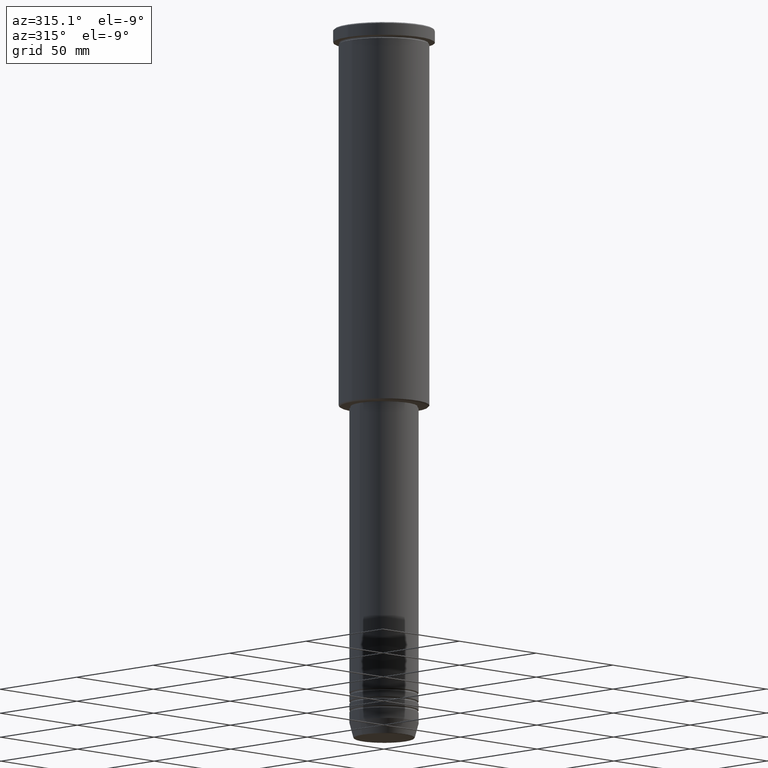
[diagram: clean part render]
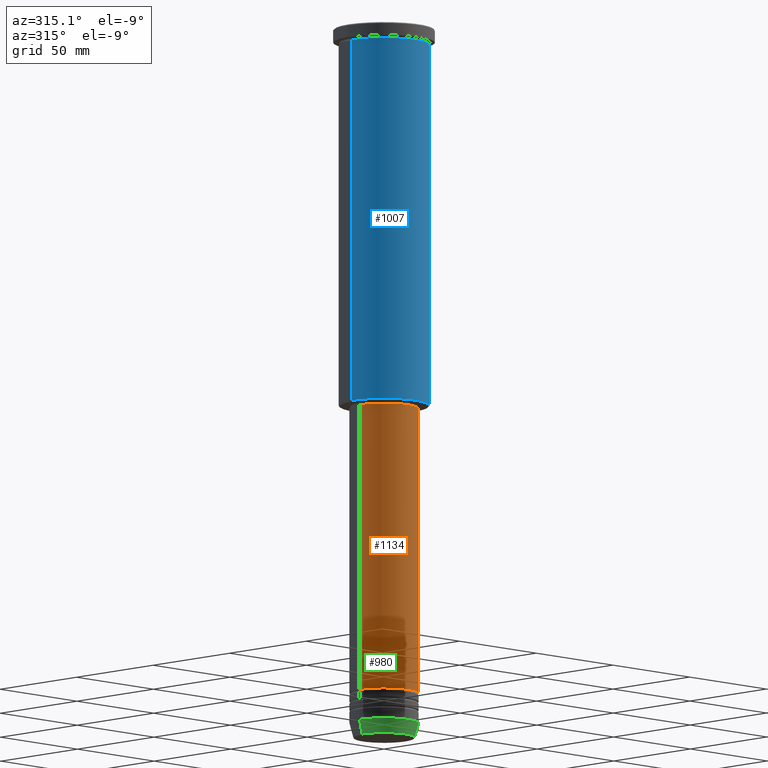
[diagram: same view with three faces highlighted in distinct colors, each labeled with its STEP entity id]
A machine part, auxiliary view with three faces highlighted in distinct colors.
Their STEP definitions:

[orange] entity #1134 — the highlighted cylindrical surface (edge-blend (fillet) strip) has radius 16 mm, axis along (-0, -0, 1).
#39 = ORIENTED_EDGE ( 'NONE', *, *, #934, .T. ) ;
#42 = CIRCLE ( 'NONE', #1038, 16.00000000000000000 ) ;
#47 = LINE ( 'NONE', #1010, #712 ) ;
#88 = EDGE_LOOP ( 'NONE', ( #504, #1108, #39, #644 ) ) ;
#126 = EDGE_CURVE ( 'NONE', #638, #886, #47, .T. ) ;
#166 = CYLINDRICAL_SURFACE ( 'NONE', #315, 16.00000000000000000 ) ;
#174 = EDGE_CURVE ( 'NONE', #886, #322, #1017, .T. ) ;
#179 = FACE_OUTER_BOUND ( 'NONE', #88, .T. ) ;
#289 = DIRECTION ( 'NONE',  ( 1.000000000000000000, 0.000000000000000000, 0.000000000000000000 ) ) ;
#302 = CARTESIAN_POINT ( 'NONE',  ( 0.000000000000000000, 0.000000000000000000, -176.9999999999999432 ) ) ;
#315 = AXIS2_PLACEMENT_3D ( 'NONE', #1005, #1082, #380 ) ;
#322 = VERTEX_POINT ( 'NONE', #617 ) ;
#380 = DIRECTION ( 'NONE',  ( 1.000000000000000000, 0.000000000000000000, 0.000000000000000000 ) ) ;
#409 = VERTEX_POINT ( 'NONE', #839 ) ;
#457 = DIRECTION ( 'NONE',  ( -0.000000000000000000, -0.000000000000000000, 1.000000000000000000 ) ) ;
#504 = ORIENTED_EDGE ( 'NONE', *, *, #126, .F. ) ;
#611 = EDGE_CURVE ( 'NONE', #638, #409, #42, .T. ) ;
#614 = DIRECTION ( 'NONE',  ( -0.000000000000000000, -0.000000000000000000, 1.000000000000000000 ) ) ;
#617 = CARTESIAN_POINT ( 'NONE',  ( 16.00000000000000355, 0.000000000000000000, -176.9999999999999432 ) ) ;
#622 = VECTOR ( 'NONE', #614, 1000.000000000000000 ) ;
#638 = VERTEX_POINT ( 'NONE', #1057 ) ;
#644 = ORIENTED_EDGE ( 'NONE', *, *, #174, .F. ) ;
#656 = AXIS2_PLACEMENT_3D ( 'NONE', #302, #667, #289 ) ;
#667 = DIRECTION ( 'NONE',  ( -0.000000000000000000, -0.000000000000000000, 1.000000000000000000 ) ) ;
#691 = CARTESIAN_POINT ( 'NONE',  ( -16.00000000000000355, 1.959434878635765526E-15, -176.9999999999999432 ) ) ;
#712 = VECTOR ( 'NONE', #830, 1000.000000000000000 ) ;
#802 = CARTESIAN_POINT ( 'NONE',  ( 16.00000000000000000, 0.000000000000000000, 0.000000000000000000 ) ) ;
#826 = DIRECTION ( 'NONE',  ( 1.000000000000000000, 0.000000000000000000, 0.000000000000000000 ) ) ;
#830 = DIRECTION ( 'NONE',  ( -0.000000000000000000, -0.000000000000000000, 1.000000000000000000 ) ) ;
#839 = CARTESIAN_POINT ( 'NONE',  ( 16.00000000000000000, 0.000000000000000000, -309.9999999999999432 ) ) ;
#886 = VERTEX_POINT ( 'NONE', #691 ) ;
#934 = EDGE_CURVE ( 'NONE', #409, #322, #1164, .T. ) ;
#986 = CARTESIAN_POINT ( 'NONE',  ( 0.000000000000000000, 0.000000000000000000, -309.9999999999999432 ) ) ;
#1005 = CARTESIAN_POINT ( 'NONE',  ( 0.000000000000000000, 0.000000000000000000, 0.000000000000000000 ) ) ;
#1010 = CARTESIAN_POINT ( 'NONE',  ( -16.00000000000000000, 1.959434878635765131E-15, 0.000000000000000000 ) ) ;
#1017 = CIRCLE ( 'NONE', #656, 16.00000000000000355 ) ;
#1038 = AXIS2_PLACEMENT_3D ( 'NONE', #986, #457, #826 ) ;
#1057 = CARTESIAN_POINT ( 'NONE',  ( -16.00000000000000000, 1.959434878635765131E-15, -309.9999999999999432 ) ) ;
#1082 = DIRECTION ( 'NONE',  ( -0.000000000000000000, -0.000000000000000000, 1.000000000000000000 ) ) ;
#1108 = ORIENTED_EDGE ( 'NONE', *, *, #611, .T. ) ;
#1134 = ADVANCED_FACE ( 'NONE', ( #179 ), #166, .T. ) ;
#1164 = LINE ( 'NONE', #802, #622 ) ;

[blue] entity #1007 — the highlighted cylindrical surface (partial cylindrical patch) has radius 21 mm, axis along (-0, -0, 1).
#3 = CIRCLE ( 'NONE', #353, 21.00000000000000000 ) ;
#30 = EDGE_LOOP ( 'NONE', ( #892, #487, #903, #519 ) ) ;
#86 = CARTESIAN_POINT ( 'NONE',  ( 21.00000000000000000, 0.000000000000000000, -175.4999999999999432 ) ) ;
#100 = CARTESIAN_POINT ( 'NONE',  ( 0.000000000000000000, 0.000000000000000000, -6.999999999999993783 ) ) ;
#143 = CARTESIAN_POINT ( 'NONE',  ( -21.00000000000000000, 2.571758278209441661E-15, 0.000000000000000000 ) ) ;
#163 = DIRECTION ( 'NONE',  ( -0.000000000000000000, -0.000000000000000000, 1.000000000000000000 ) ) ;
#260 = FACE_OUTER_BOUND ( 'NONE', #30, .T. ) ;
#317 = VERTEX_POINT ( 'NONE', #1157 ) ;
#344 = DIRECTION ( 'NONE',  ( -0.000000000000000000, -0.000000000000000000, 1.000000000000000000 ) ) ;
#353 = AXIS2_PLACEMENT_3D ( 'NONE', #601, #703, #1050 ) ;
#368 = EDGE_CURVE ( 'NONE', #990, #317, #731, .T. ) ;
#396 = AXIS2_PLACEMENT_3D ( 'NONE', #100, #1091, #470 ) ;
#404 = EDGE_CURVE ( 'NONE', #940, #317, #993, .T. ) ;
#455 = DIRECTION ( 'NONE',  ( -0.000000000000000000, -0.000000000000000000, 1.000000000000000000 ) ) ;
#470 = DIRECTION ( 'NONE',  ( 1.000000000000000000, 0.000000000000000000, 0.000000000000000000 ) ) ;
#487 = ORIENTED_EDGE ( 'NONE', *, *, #490, .T. ) ;
#490 = EDGE_CURVE ( 'NONE', #789, #940, #3, .T. ) ;
#516 = EDGE_CURVE ( 'NONE', #789, #990, #1066, .T. ) ;
#519 = ORIENTED_EDGE ( 'NONE', *, *, #368, .F. ) ;
#601 = CARTESIAN_POINT ( 'NONE',  ( 0.000000000000000000, 0.000000000000000000, -175.4999999999999432 ) ) ;
#626 = CYLINDRICAL_SURFACE ( 'NONE', #926, 21.00000000000000000 ) ;
#703 = DIRECTION ( 'NONE',  ( -0.000000000000000000, -0.000000000000000000, 1.000000000000000000 ) ) ;
#731 = CIRCLE ( 'NONE', #396, 21.00000000000000000 ) ;
#745 = CARTESIAN_POINT ( 'NONE',  ( 21.00000000000000000, 0.000000000000000000, 0.000000000000000000 ) ) ;
#789 = VERTEX_POINT ( 'NONE', #1047 ) ;
#811 = DIRECTION ( 'NONE',  ( 1.000000000000000000, 0.000000000000000000, 0.000000000000000000 ) ) ;
#818 = CARTESIAN_POINT ( 'NONE',  ( -21.00000000000000000, 2.571758278209441661E-15, -6.999999999999993783 ) ) ;
#892 = ORIENTED_EDGE ( 'NONE', *, *, #516, .F. ) ;
#903 = ORIENTED_EDGE ( 'NONE', *, *, #404, .T. ) ;
#926 = AXIS2_PLACEMENT_3D ( 'NONE', #987, #163, #811 ) ;
#940 = VERTEX_POINT ( 'NONE', #86 ) ;
#987 = CARTESIAN_POINT ( 'NONE',  ( 0.000000000000000000, 0.000000000000000000, 0.000000000000000000 ) ) ;
#990 = VERTEX_POINT ( 'NONE', #818 ) ;
#993 = LINE ( 'NONE', #745, #1147 ) ;
#1007 = ADVANCED_FACE ( 'NONE', ( #260 ), #626, .T. ) ;
#1047 = CARTESIAN_POINT ( 'NONE',  ( -21.00000000000000000, 2.571758278209441661E-15, -175.4999999999999432 ) ) ;
#1050 = DIRECTION ( 'NONE',  ( -1.000000000000000000, 0.000000000000000000, 0.000000000000000000 ) ) ;
#1066 = LINE ( 'NONE', #143, #1113 ) ;
#1091 = DIRECTION ( 'NONE',  ( -0.000000000000000000, -0.000000000000000000, 1.000000000000000000 ) ) ;
#1113 = VECTOR ( 'NONE', #344, 1000.000000000000000 ) ;
#1147 = VECTOR ( 'NONE', #455, 1000.000000000000000 ) ;
#1157 = CARTESIAN_POINT ( 'NONE',  ( 21.00000000000000000, 0.000000000000000000, -6.999999999999993783 ) ) ;

[green] entity #980 — the highlighted conical surface has half-angle 15 deg.
#14 = ORIENTED_EDGE ( 'NONE', *, *, #347, .T. ) ;
#34 = CARTESIAN_POINT ( 'NONE',  ( -16.00000000000000000, 1.959434878635765131E-15, -324.0000000000000000 ) ) ;
#51 = DIRECTION ( 'NONE',  ( 1.000000000000000000, 0.000000000000000000, 0.000000000000000000 ) ) ;
#64 = ORIENTED_EDGE ( 'NONE', *, *, #509, .F. ) ;
#107 = DIRECTION ( 'NONE',  ( 1.000000000000000000, 0.000000000000000000, 0.000000000000000000 ) ) ;
#133 = CARTESIAN_POINT ( 'NONE',  ( 14.22365507213718772, 0.000000000000000000, -330.6294095225512706 ) ) ;
#180 = VERTEX_POINT ( 'NONE', #34 ) ;
#204 = VERTEX_POINT ( 'NONE', #133 ) ;
#245 = ORIENTED_EDGE ( 'NONE', *, *, #1175, .F. ) ;
#347 = EDGE_CURVE ( 'NONE', #383, #204, #468, .T. ) ;
#383 = VERTEX_POINT ( 'NONE', #1011 ) ;
#388 = DIRECTION ( 'NONE',  ( -0.000000000000000000, -0.000000000000000000, 1.000000000000000000 ) ) ;
#442 = DIRECTION ( 'NONE',  ( 1.000000000000000000, 0.000000000000000000, 0.000000000000000000 ) ) ;
#443 = CIRCLE ( 'NONE', #688, 16.00000000000000000 ) ;
#452 = DIRECTION ( 'NONE',  ( -0.000000000000000000, -0.000000000000000000, 1.000000000000000000 ) ) ;
#468 = CIRCLE ( 'NONE', #809, 14.22365507213718772 ) ;
#499 = EDGE_CURVE ( 'NONE', #204, #591, #780, .T. ) ;
#509 = EDGE_CURVE ( 'NONE', #180, #591, #443, .T. ) ;
#510 = DIRECTION ( 'NONE',  ( 0.2588190451025213501, 0.000000000000000000, 0.9659258262890680902 ) ) ;
#591 = VERTEX_POINT ( 'NONE', #1002 ) ;
#688 = AXIS2_PLACEMENT_3D ( 'NONE', #873, #1148, #51 ) ;
#715 = FACE_OUTER_BOUND ( 'NONE', #921, .T. ) ;
#739 = DIRECTION ( 'NONE',  ( -0.2588190451025213501, 3.169619151431772337E-17, 0.9659258262890680902 ) ) ;
#780 = LINE ( 'NONE', #797, #955 ) ;
#795 = CARTESIAN_POINT ( 'NONE',  ( 0.000000000000000000, 0.000000000000000000, -324.0000000000000000 ) ) ;
#797 = CARTESIAN_POINT ( 'NONE',  ( 16.00000000000000000, 0.000000000000000000, -324.0000000000000000 ) ) ;
#809 = AXIS2_PLACEMENT_3D ( 'NONE', #999, #388, #107 ) ;
#815 = CARTESIAN_POINT ( 'NONE',  ( -16.00000000000000000, 1.959434878635765131E-15, -324.0000000000000000 ) ) ;
#829 = LINE ( 'NONE', #815, #1040 ) ;
#873 = CARTESIAN_POINT ( 'NONE',  ( 0.000000000000000000, 0.000000000000000000, -324.0000000000000000 ) ) ;
#911 = ORIENTED_EDGE ( 'NONE', *, *, #499, .T. ) ;
#921 = EDGE_LOOP ( 'NONE', ( #245, #14, #911, #64 ) ) ;
#955 = VECTOR ( 'NONE', #510, 1000.000000000000000 ) ;
#980 = ADVANCED_FACE ( 'NONE', ( #715 ), #1039, .T. ) ;
#999 = CARTESIAN_POINT ( 'NONE',  ( 0.000000000000000000, 0.000000000000000000, -330.6294095225512706 ) ) ;
#1002 = CARTESIAN_POINT ( 'NONE',  ( 16.00000000000000000, 0.000000000000000000, -324.0000000000000000 ) ) ;
#1011 = CARTESIAN_POINT ( 'NONE',  ( -14.22365507213718772, 1.850665122131323337E-15, -330.6294095225512706 ) ) ;
#1039 = CONICAL_SURFACE ( 'NONE', #1100, 16.00000000000000000, 0.2617993877991500740 ) ;
#1040 = VECTOR ( 'NONE', #739, 1000.000000000000000 ) ;
#1100 = AXIS2_PLACEMENT_3D ( 'NONE', #795, #452, #442 ) ;
#1148 = DIRECTION ( 'NONE',  ( -0.000000000000000000, -0.000000000000000000, 1.000000000000000000 ) ) ;
#1175 = EDGE_CURVE ( 'NONE', #383, #180, #829, .T. ) ;